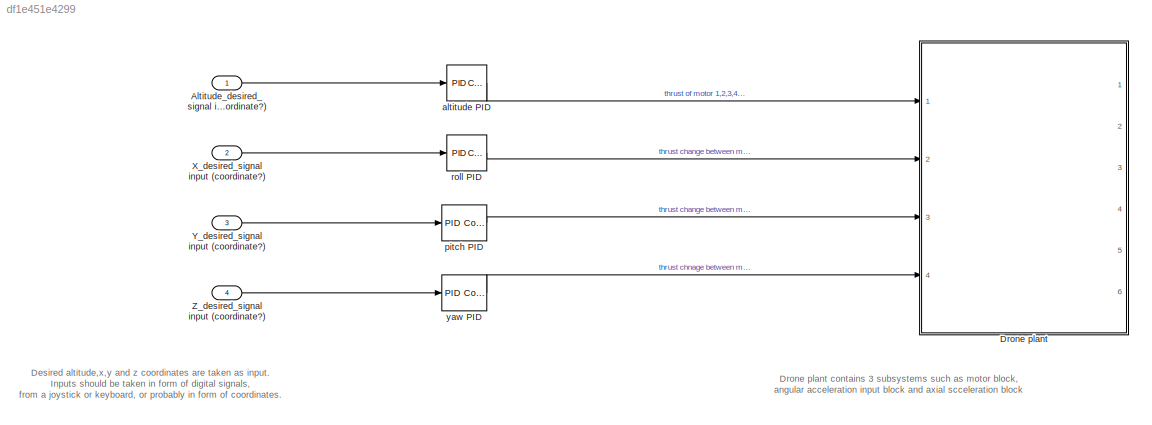
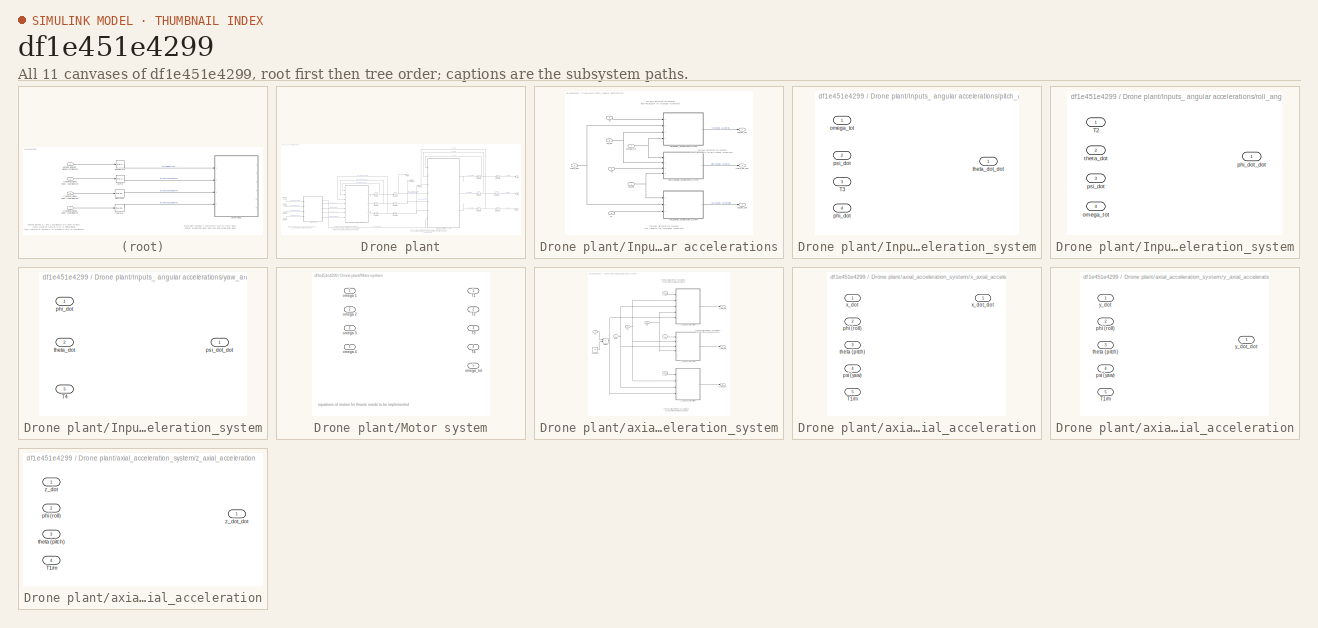
[diagram: thumbnail index - all 11 canvases of the model, root first then tree order]
MODEL slx_df1e451e4299
KIND model
CONFIG AbsTol = auto
CONFIG EnableMultiTasking = off
CONFIG FixedStep = auto
CONFIG MaxStep = auto
CONFIG MinStep = auto
CONFIG RelTol = 1e-3
CONFIG SampleTimeConstraint = Unconstrained
CONFIG Solver = VariableStepAuto
CONFIG SolverName = VariableStepAuto
CONFIG StartTime = 0.0
CONFIG StopTime = 10.0
WORKSPACE source: mxarray member
WORKSPACE m = 1
BLOCK [Inport] Altitude_desired_signal input (coordinate?)
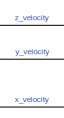
[diagram: Drone plant - part 1/3, top right region]
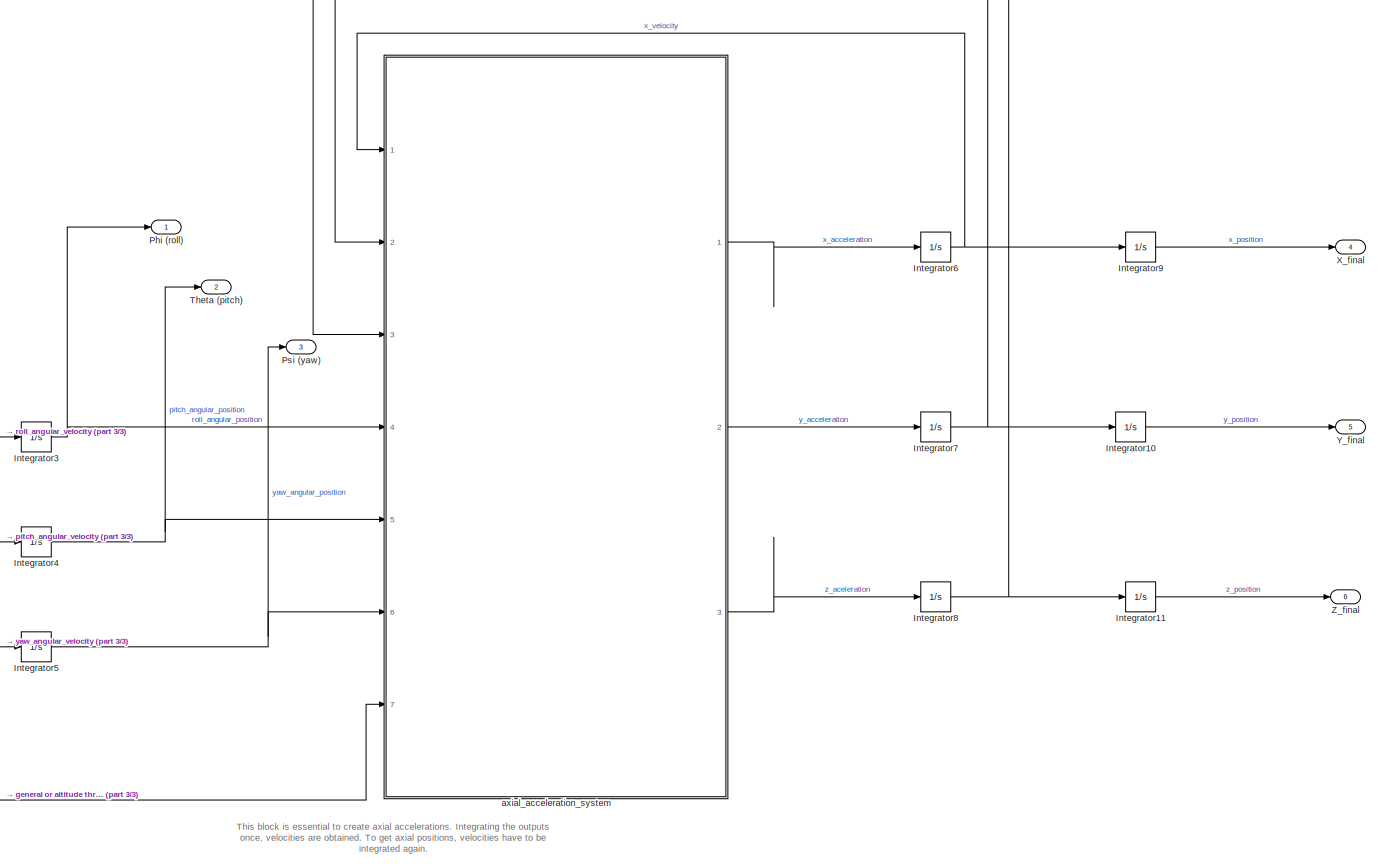
[diagram: Drone plant - part 2/3, right side, full height]
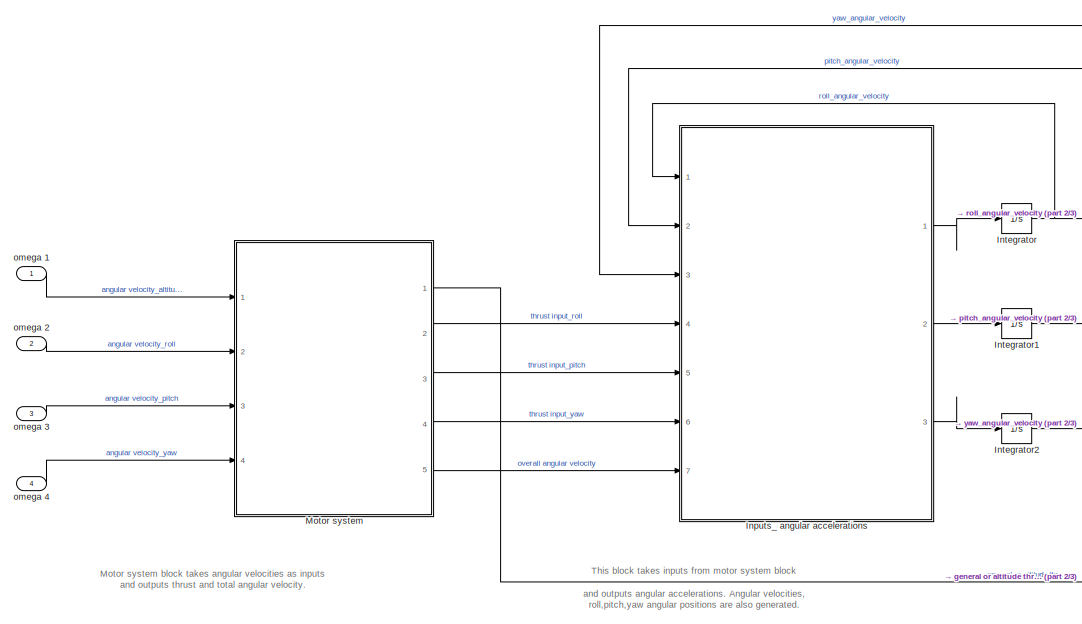
[diagram: Drone plant - part 3/3, middle left region]
BLOCK [SubSystem] Drone plant
  Ports = [4, 6]
  RequestExecContextInheritance = off
BLOCK [SubSystem] Drone plant/Inputs_ angular accelerations
  Ports = [7, 3]
  RequestExecContextInheritance = off
BLOCK [Inport] Drone plant/Inputs_ angular accelerations/T2
  Port = 4
BLOCK [Inport] Drone plant/Inputs_ angular accelerations/T3
  Port = 5
BLOCK [Inport] Drone plant/Inputs_ angular accelerations/T4
  Port = 6
BLOCK [Inport] Drone plant/Inputs_ angular accelerations/omega_tot
  Port = 7
BLOCK [Inport] Drone plant/Inputs_ angular accelerations/phi_dot
BLOCK [Outport] Drone plant/Inputs_ angular accelerations/phi_dot_dot
BLOCK [SubSystem] Drone plant/Inputs_ angular accelerations/pitch_angular_acceleration_system
  Ports = [4, 1]
  RequestExecContextInheritance = off
BLOCK [Inport] Drone plant/Inputs_ angular accelerations/pitch_angular_acceleration_system/T3
  Port = 3
BLOCK [Inport] Drone plant/Inputs_ angular accelerations/pitch_angular_acceleration_system/omega_tot
BLOCK [Inport] Drone plant/Inputs_ angular accelerations/pitch_angular_acceleration_system/phi_dot
  Port = 4
BLOCK [Inport] Drone plant/Inputs_ angular accelerations/pitch_angular_acceleration_system/psi_dot
  Port = 2
BLOCK [Outport] Drone plant/Inputs_ angular accelerations/pitch_angular_acceleration_system/theta_dot_dot
BLOCK [Inport] Drone plant/Inputs_ angular accelerations/psi_dot
  Port = 3
BLOCK [Outport] Drone plant/Inputs_ angular accelerations/psi_dot_dot
  Port = 3
BLOCK [SubSystem] Drone plant/Inputs_ angular accelerations/roll_angular_acceleration_system
  Ports = [4, 1]
  RequestExecContextInheritance = off
BLOCK [Inport] Drone plant/Inputs_ angular accelerations/roll_angular_acceleration_system/T2
BLOCK [Inport] Drone plant/Inputs_ angular accelerations/roll_angular_acceleration_system/omega_tot
  Port = 4
BLOCK [Outport] Drone plant/Inputs_ angular accelerations/roll_angular_acceleration_system/phi_dot_dot
BLOCK [Inport] Drone plant/Inputs_ angular accelerations/roll_angular_acceleration_system/psi_dot
  Port = 3
BLOCK [Inport] Drone plant/Inputs_ angular accelerations/roll_angular_acceleration_system/theta_dot
  Port = 2
BLOCK [Inport] Drone plant/Inputs_ angular accelerations/theta_dot
  Port = 2
BLOCK [Outport] Drone plant/Inputs_ angular accelerations/theta_dot_dot
  Port = 2
BLOCK [SubSystem] Drone plant/Inputs_ angular accelerations/yaw_angular_acceleration_system
  Ports = [3, 1]
  RequestExecContextInheritance = off
BLOCK [Inport] Drone plant/Inputs_ angular accelerations/yaw_angular_acceleration_system/T4
  Port = 3
BLOCK [Inport] Drone plant/Inputs_ angular accelerations/yaw_angular_acceleration_system/phi_dot
BLOCK [Outport] Drone plant/Inputs_ angular accelerations/yaw_angular_acceleration_system/psi_dot_dot
BLOCK [Inport] Drone plant/Inputs_ angular accelerations/yaw_angular_acceleration_system/theta_dot
  Port = 2
BLOCK [Integrator] Drone plant/Integrator
  Ports = [1, 1]
BLOCK [Integrator] Drone plant/Integrator1
  Ports = [1, 1]
BLOCK [Integrator] Drone plant/Integrator10
  Ports = [1, 1]
BLOCK [Integrator] Drone plant/Integrator11
  Ports = [1, 1]
BLOCK [Integrator] Drone plant/Integrator2
  Ports = [1, 1]
BLOCK [Integrator] Drone plant/Integrator3
  Ports = [1, 1]
BLOCK [Integrator] Drone plant/Integrator4
  Ports = [1, 1]
BLOCK [Integrator] Drone plant/Integrator5
  Ports = [1, 1]
BLOCK [Integrator] Drone plant/Integrator6
  Ports = [1, 1]
BLOCK [Integrator] Drone plant/Integrator7
  Ports = [1, 1]
BLOCK [Integrator] Drone plant/Integrator8
  Ports = [1, 1]
BLOCK [Integrator] Drone plant/Integrator9
  Ports = [1, 1]
BLOCK [SubSystem] Drone plant/Motor system
  Ports = [4, 5]
  RequestExecContextInheritance = off
BLOCK [Outport] Drone plant/Motor system/T1
BLOCK [Outport] Drone plant/Motor system/T2
  Port = 2
BLOCK [Outport] Drone plant/Motor system/T3
  Port = 3
BLOCK [Outport] Drone plant/Motor system/T4
  Port = 4
BLOCK [Inport] Drone plant/Motor system/omega 1
BLOCK [Inport] Drone plant/Motor system/omega 2
  Port = 2
BLOCK [Inport] Drone plant/Motor system/omega 3
  Port = 3
BLOCK [Inport] Drone plant/Motor system/omega 4
  Port = 4
BLOCK [Outport] Drone plant/Motor system/omega_tot
  Port = 5
BLOCK [Outport] Drone plant/Phi (roll)
BLOCK [Outport] Drone plant/Psi (yaw)
  Port = 3
BLOCK [Outport] Drone plant/Theta (pitch)
  Port = 2
BLOCK [Outport] Drone plant/X_final
  Port = 4
BLOCK [Outport] Drone plant/Y_final
  Port = 5
BLOCK [Outport] Drone plant/Z_final
  Port = 6
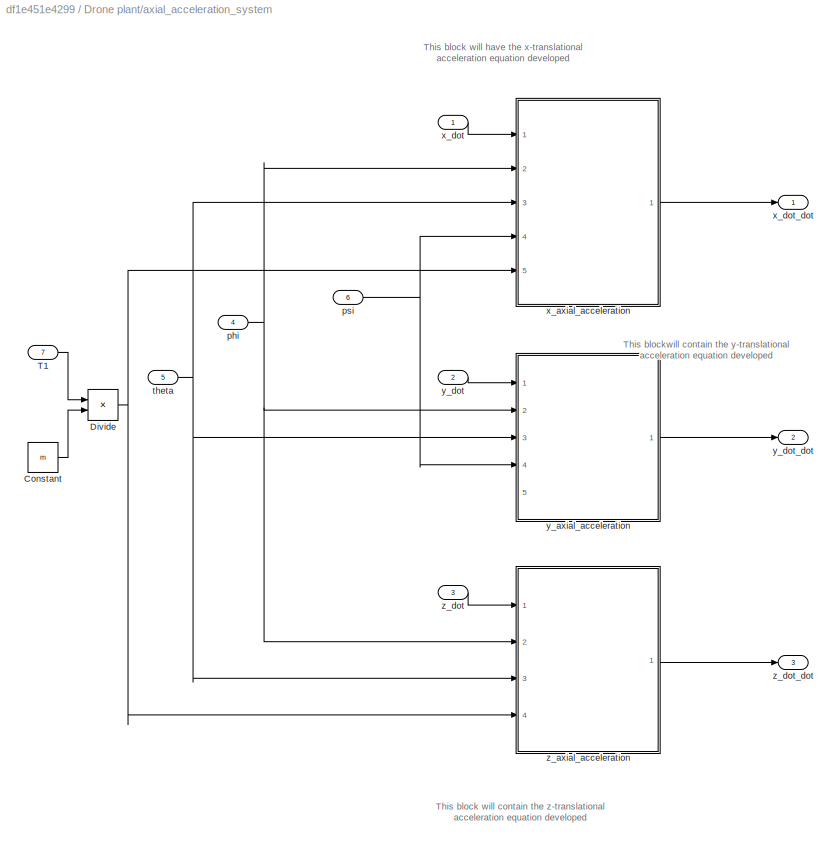
BLOCK [SubSystem] Drone plant/axial_acceleration_system
  Ports = [7, 3]
  RequestExecContextInheritance = off
BLOCK [Constant] Drone plant/axial_acceleration_system/Constant
  Value = m
BLOCK [Product] Drone plant/axial_acceleration_system/Divide
  Inputs = */
  Ports = [2, 1]
BLOCK [Inport] Drone plant/axial_acceleration_system/T1
  Port = 7
BLOCK [Inport] Drone plant/axial_acceleration_system/phi
  Port = 4
BLOCK [Inport] Drone plant/axial_acceleration_system/psi
  Port = 6
BLOCK [Inport] Drone plant/axial_acceleration_system/theta
  Port = 5
BLOCK [SubSystem] Drone plant/axial_acceleration_system/x_axial_acceleration
  Ports = [5, 1]
  RequestExecContextInheritance = off
BLOCK [Inport] Drone plant/axial_acceleration_system/x_axial_acceleration/T1//m
  Port = 5
BLOCK [Inport] Drone plant/axial_acceleration_system/x_axial_acceleration/phi (roll)
  Port = 2
BLOCK [Inport] Drone plant/axial_acceleration_system/x_axial_acceleration/psi (yaw)
  Port = 4
BLOCK [Inport] Drone plant/axial_acceleration_system/x_axial_acceleration/theta (pitch)
  Port = 3
BLOCK [Inport] Drone plant/axial_acceleration_system/x_axial_acceleration/x_dot
BLOCK [Outport] Drone plant/axial_acceleration_system/x_axial_acceleration/x_dot_dot
BLOCK [Inport] Drone plant/axial_acceleration_system/x_dot
BLOCK [Outport] Drone plant/axial_acceleration_system/x_dot_dot
BLOCK [SubSystem] Drone plant/axial_acceleration_system/y_axial_acceleration
  Ports = [5, 1]
  RequestExecContextInheritance = off
BLOCK [Inport] Drone plant/axial_acceleration_system/y_axial_acceleration/T1//m
  Port = 5
BLOCK [Inport] Drone plant/axial_acceleration_system/y_axial_acceleration/phi (roll)
  Port = 2
BLOCK [Inport] Drone plant/axial_acceleration_system/y_axial_acceleration/psi (yaw)
  Port = 4
BLOCK [Inport] Drone plant/axial_acceleration_system/y_axial_acceleration/theta (pitch)
  Port = 3
BLOCK [Inport] Drone plant/axial_acceleration_system/y_axial_acceleration/y_dot
BLOCK [Outport] Drone plant/axial_acceleration_system/y_axial_acceleration/y_dot_dot
BLOCK [Inport] Drone plant/axial_acceleration_system/y_dot
  Port = 2
BLOCK [Outport] Drone plant/axial_acceleration_system/y_dot_dot
  Port = 2
BLOCK [SubSystem] Drone plant/axial_acceleration_system/z_axial_acceleration
  Ports = [4, 1]
  RequestExecContextInheritance = off
BLOCK [Inport] Drone plant/axial_acceleration_system/z_axial_acceleration/T1//m
  Port = 4
BLOCK [Inport] Drone plant/axial_acceleration_system/z_axial_acceleration/phi (roll)
  Port = 2
BLOCK [Inport] Drone plant/axial_acceleration_system/z_axial_acceleration/theta (pitch)
  Port = 3
BLOCK [Inport] Drone plant/axial_acceleration_system/z_axial_acceleration/z_dot
BLOCK [Outport] Drone plant/axial_acceleration_system/z_axial_acceleration/z_dot_dot
BLOCK [Inport] Drone plant/axial_acceleration_system/z_dot
  Port = 3
BLOCK [Outport] Drone plant/axial_acceleration_system/z_dot_dot
  Port = 3
BLOCK [Inport] Drone plant/omega 1
BLOCK [Inport] Drone plant/omega 2
  Port = 2
BLOCK [Inport] Drone plant/omega 3
  Port = 3
BLOCK [Inport] Drone plant/omega 4
  Port = 4
BLOCK [Inport] X_desired_signal input (coordinate?)
  Port = 2
BLOCK [Inport] Y_desired_signal input (coordinate?)
  Port = 3
BLOCK [Inport] Z_desired_signal input (coordinate?)
  Port = 4
BLOCK [Reference] altitude PID  REF=simulink/Continuous/PID Controller
  Ports = [1, 1]
  SourceBlock = simulink/Continuous/PID Controller
  SourceProductBaseCode = SL
  SourceType = PID 1dof
BLOCK [Reference] pitch PID  REF=simulink/Continuous/PID Controller
  Ports = [1, 1]
  SourceBlock = simulink/Continuous/PID Controller
  SourceProductBaseCode = SL
  SourceType = PID 1dof
BLOCK [Reference] roll PID  REF=simulink/Continuous/PID Controller
  Ports = [1, 1]
  SourceBlock = simulink/Continuous/PID Controller
  SourceProductBaseCode = SL
  SourceType = PID 1dof
BLOCK [Reference] yaw PID  REF=simulink/Continuous/PID Controller
  Ports = [1, 1]
  SourceBlock = simulink/Continuous/PID Controller
  SourceProductBaseCode = SL
  SourceType = PID 1dof
ANNOTATION (root): Desired altitude,x,y and z coordinates are taken as input. Inputs should be taken in form of digital signals, from a joystick or keyboard, or probably in form of coordinates.
ANNOTATION (root): Drone plant contains 3 subsystems such as motor block, angular acceleration input block and axial scceleration block
ANNOTATION Drone plant: Motor system block takes angular velocities as inputs and outputs thrust and total angular velocity.
ANNOTATION Drone plant: This block is essential to create axial accelerations. Integrating the outputs once, velocities are obtained. To get axial positions, velocities have to be integrated again.
ANNOTATION Drone plant: This block takes inputs from motor system block and outputs angular accelerations. Angular velocities, roll,pitch,yaw angular positions are also generated.
ANNOTATION Drone plant/Inputs_ angular accelerations: This block will contain the equation that calculates the yaw angular acceleration
ANNOTATION Drone plant/Inputs_ angular accelerations: This block will contain the equation which will calculate the roll angular acceleration
ANNOTATION Drone plant/Inputs_ angular accelerations: This blovk will contain the equation which will calculate the pitch angular acceleration
ANNOTATION Drone plant/Motor system: equations of motion for thrusts needs to be implemented
ANNOTATION Drone plant/axial_acceleration_system: This block will contain the z-translational acceleration equation developed
ANNOTATION Drone plant/axial_acceleration_system: This block will have the x-translational acceleration equation developed
ANNOTATION Drone plant/axial_acceleration_system: This blockwill contain the y-translational acceleration equation developed
LINE Altitude_desired_signal input (coordinate?):1 -> altitude PID:1
LINE Drone plant/Inputs_ angular accelerations/T2:1 -> Drone plant/Inputs_ angular accelerations/roll_angular_acceleration_system:1
LINE Drone plant/Inputs_ angular accelerations/T3:1 -> Drone plant/Inputs_ angular accelerations/pitch_angular_acceleration_system:3
LINE Drone plant/Inputs_ angular accelerations/T4:1 -> Drone plant/Inputs_ angular accelerations/yaw_angular_acceleration_system:3
NET Drone plant/Inputs_ angular accelerations/omega_tot:1 -> Drone plant/Inputs_ angular accelerations/pitch_angular_acceleration_system:1, Drone plant/Inputs_ angular accelerations/roll_angular_acceleration_system:4
NET Drone plant/Inputs_ angular accelerations/phi_dot:1 -> Drone plant/Inputs_ angular accelerations/pitch_angular_acceleration_system:4, Drone plant/Inputs_ angular accelerations/yaw_angular_acceleration_system:1
LINE Drone plant/Inputs_ angular accelerations/pitch_angular_acceleration_system:1 -> Drone plant/Inputs_ angular accelerations/theta_dot_dot:1
NET Drone plant/Inputs_ angular accelerations/psi_dot:1 -> Drone plant/Inputs_ angular accelerations/pitch_angular_acceleration_system:2, Drone plant/Inputs_ angular accelerations/roll_angular_acceleration_system:3
LINE Drone plant/Inputs_ angular accelerations/roll_angular_acceleration_system:1 -> Drone plant/Inputs_ angular accelerations/phi_dot_dot:1
NET Drone plant/Inputs_ angular accelerations/theta_dot:1 -> Drone plant/Inputs_ angular accelerations/roll_angular_acceleration_system:2, Drone plant/Inputs_ angular accelerations/yaw_angular_acceleration_system:2
LINE Drone plant/Inputs_ angular accelerations/yaw_angular_acceleration_system:1 -> Drone plant/Inputs_ angular accelerations/psi_dot_dot:1
LINE Drone plant/Inputs_ angular accelerations:1 -> Drone plant/Integrator:1
LINE Drone plant/Inputs_ angular accelerations:2 -> Drone plant/Integrator1:1
LINE Drone plant/Inputs_ angular accelerations:3 -> Drone plant/Integrator2:1
LINE Drone plant/Integrator10:1 -> Drone plant/Y_final:1
LINE Drone plant/Integrator11:1 -> Drone plant/Z_final:1
NET Drone plant/Integrator1:1 -> Drone plant/Inputs_ angular accelerations:2, Drone plant/Integrator4:1
NET Drone plant/Integrator2:1 -> Drone plant/Inputs_ angular accelerations:3, Drone plant/Integrator5:1
NET Drone plant/Integrator3:1 -> Drone plant/Phi (roll):1, Drone plant/axial_acceleration_system:4
NET Drone plant/Integrator4:1 -> Drone plant/Theta (pitch):1, Drone plant/axial_acceleration_system:5
NET Drone plant/Integrator5:1 -> Drone plant/Psi (yaw):1, Drone plant/axial_acceleration_system:6
NET Drone plant/Integrator6:1 -> Drone plant/Integrator9:1, Drone plant/axial_acceleration_system:1
NET Drone plant/Integrator7:1 -> Drone plant/Integrator10:1, Drone plant/axial_acceleration_system:2
NET Drone plant/Integrator8:1 -> Drone plant/Integrator11:1, Drone plant/axial_acceleration_system:3
LINE Drone plant/Integrator9:1 -> Drone plant/X_final:1
NET Drone plant/Integrator:1 -> Drone plant/Inputs_ angular accelerations:1, Drone plant/Integrator3:1
LINE Drone plant/Motor system:1 -> Drone plant/axial_acceleration_system:7
LINE Drone plant/Motor system:2 -> Drone plant/Inputs_ angular accelerations:4
LINE Drone plant/Motor system:3 -> Drone plant/Inputs_ angular accelerations:5
LINE Drone plant/Motor system:4 -> Drone plant/Inputs_ angular accelerations:6
LINE Drone plant/Motor system:5 -> Drone plant/Inputs_ angular accelerations:7
LINE Drone plant/axial_acceleration_system/Constant:1 -> Drone plant/axial_acceleration_system/Divide:2
NET Drone plant/axial_acceleration_system/Divide:1 -> Drone plant/axial_acceleration_system/x_axial_acceleration:5, Drone plant/axial_acceleration_system/z_axial_acceleration:4
LINE Drone plant/axial_acceleration_system/T1:1 -> Drone plant/axial_acceleration_system/Divide:1
NET Drone plant/axial_acceleration_system/phi:1 -> Drone plant/axial_acceleration_system/x_axial_acceleration:2, Drone plant/axial_acceleration_system/y_axial_acceleration:2, Drone plant/axial_acceleration_system/z_axial_acceleration:2
NET Drone plant/axial_acceleration_system/psi:1 -> Drone plant/axial_acceleration_system/x_axial_acceleration:4, Drone plant/axial_acceleration_system/y_axial_acceleration:4
NET Drone plant/axial_acceleration_system/theta:1 -> Drone plant/axial_acceleration_system/x_axial_acceleration:3, Drone plant/axial_acceleration_system/y_axial_acceleration:3, Drone plant/axial_acceleration_system/z_axial_acceleration:3
LINE Drone plant/axial_acceleration_system/x_axial_acceleration:1 -> Drone plant/axial_acceleration_system/x_dot_dot:1
LINE Drone plant/axial_acceleration_system/x_dot:1 -> Drone plant/axial_acceleration_system/x_axial_acceleration:1
LINE Drone plant/axial_acceleration_system/y_axial_acceleration:1 -> Drone plant/axial_acceleration_system/y_dot_dot:1
LINE Drone plant/axial_acceleration_system/y_dot:1 -> Drone plant/axial_acceleration_system/y_axial_acceleration:1
LINE Drone plant/axial_acceleration_system/z_axial_acceleration:1 -> Drone plant/axial_acceleration_system/z_dot_dot:1
LINE Drone plant/axial_acceleration_system/z_dot:1 -> Drone plant/axial_acceleration_system/z_axial_acceleration:1
LINE Drone plant/axial_acceleration_system:1 -> Drone plant/Integrator6:1
LINE Drone plant/axial_acceleration_system:2 -> Drone plant/Integrator7:1
LINE Drone plant/axial_acceleration_system:3 -> Drone plant/Integrator8:1
LINE Drone plant/omega 1:1 -> Drone plant/Motor system:1
LINE Drone plant/omega 2:1 -> Drone plant/Motor system:2
LINE Drone plant/omega 3:1 -> Drone plant/Motor system:3
LINE Drone plant/omega 4:1 -> Drone plant/Motor system:4
LINE X_desired_signal input (coordinate?):1 -> roll PID:1
LINE Y_desired_signal input (coordinate?):1 -> pitch PID:1
LINE Z_desired_signal input (coordinate?):1 -> yaw PID:1
LINE altitude PID:1 -> Drone plant:1
LINE pitch PID:1 -> Drone plant:3
LINE roll PID:1 -> Drone plant:2
LINE yaw PID:1 -> Drone plant:4
note: NET lines group one-source signal fan-out (src -> all destinations, sorted); 1:1 wires keep LINE
